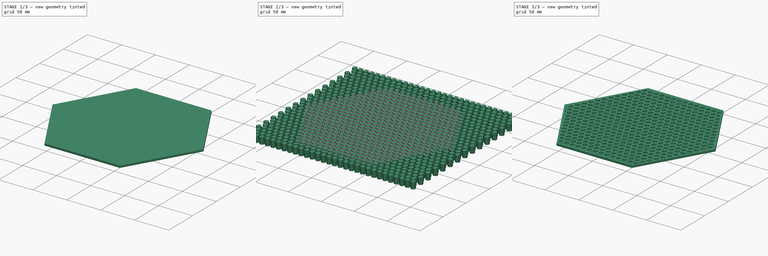
[diagram: build sequence overview — one tinted view per stage of 3, left to right]
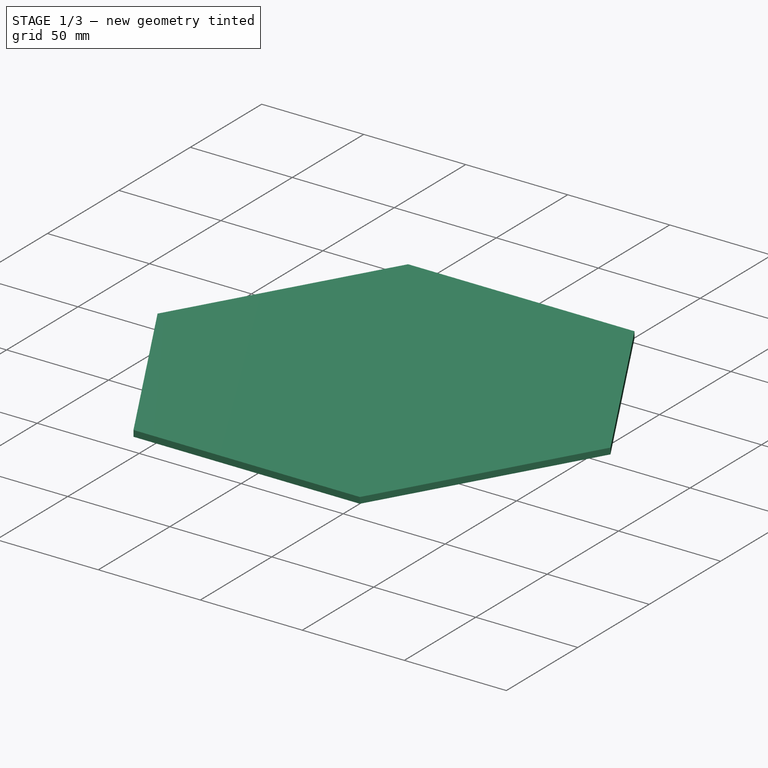
[diagram: stage 1 of 3 — iso view after this stage's code; geometry added in this stage tinted green]
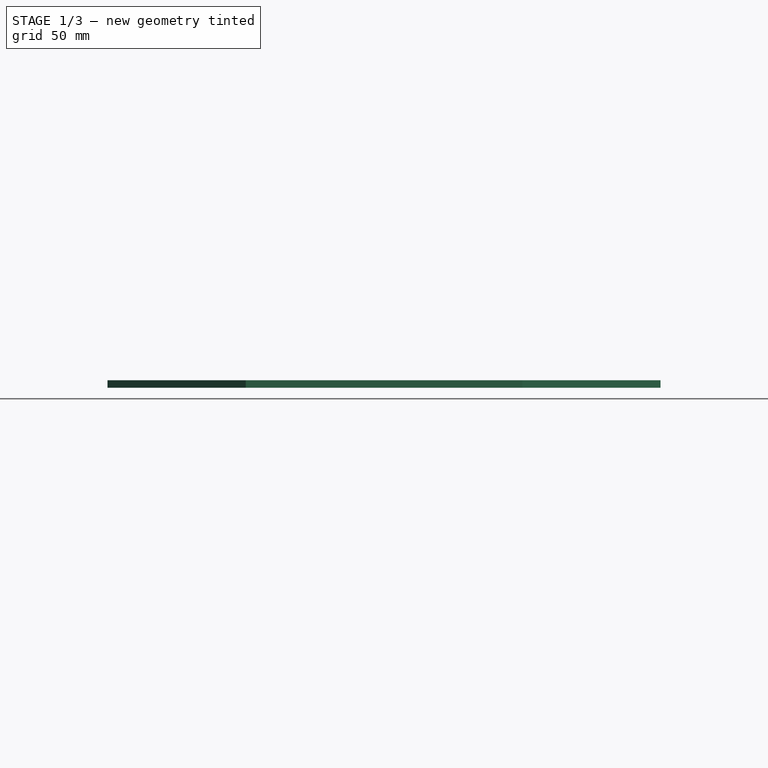
[diagram: stage 1 of 3 — front view after this stage's code; geometry added in this stage tinted green]
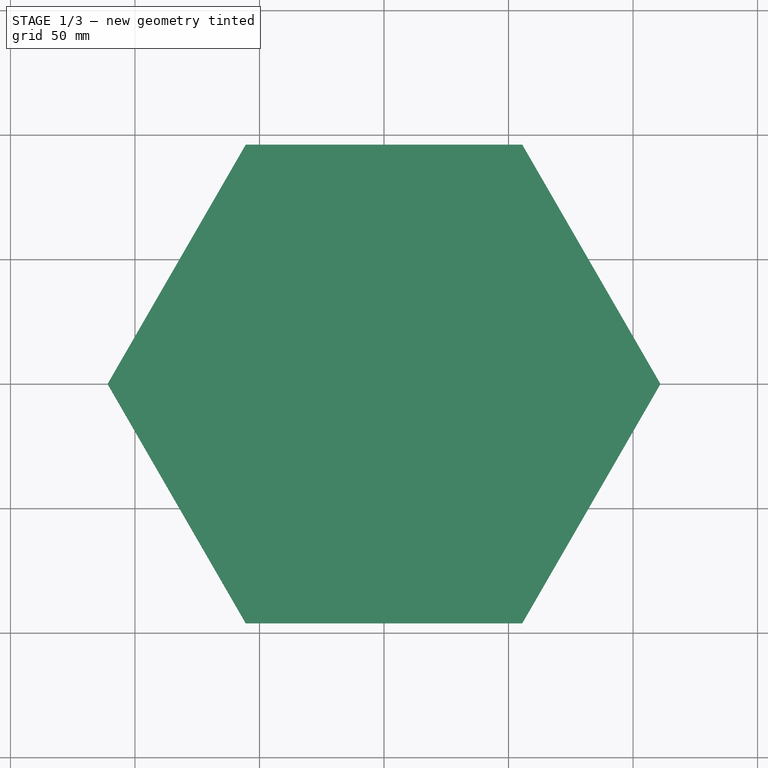
[diagram: stage 1 of 3 — top view after this stage's code; geometry added in this stage tinted green]
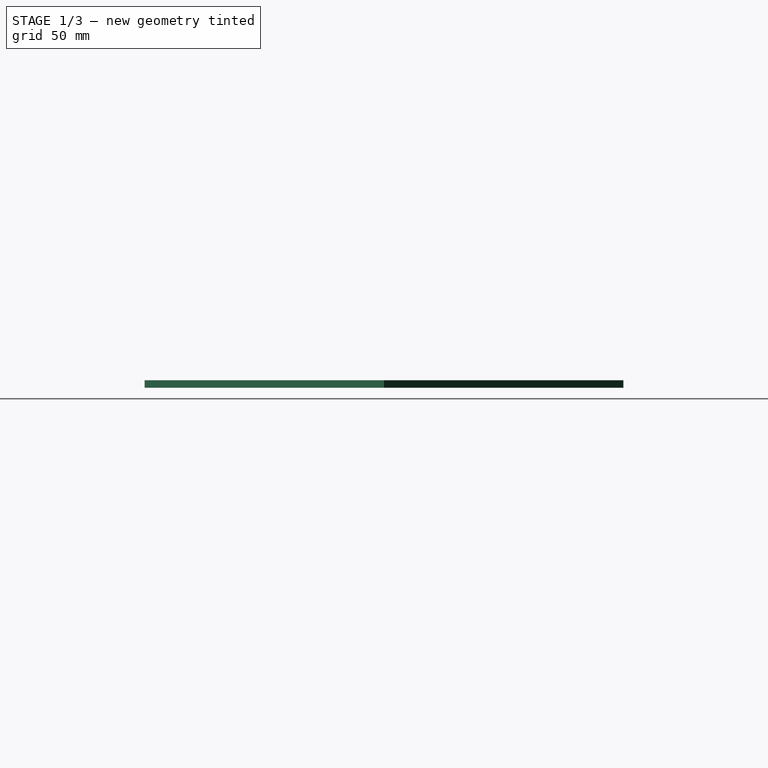
[diagram: stage 1 of 3 — right view after this stage's code; geometry added in this stage tinted green]
FCSTD DOCUMENT  (FreeCAD 1.0R39285 (Git))
Label: grid
License: All rights reserved
LicenseURL: https://en.wikipedia.org/wiki/All_rights_reserved
objects: Sketcher::SketchObject×3, Part::Extrusion×3, Part::FeaturePython×1, Part::Cut×1, Part::MultiFuse×1
note: 11 computed .brp shape members not serialized (recipe doc carries the construction recipe); baked Part::Feature solids carry a one-line shape summary decoded from their .brp
EXTERNAL_REF file=dims.FCStd obj=Spreadsheet

FEATURE [Part::Extrusion] Extrude001
  Base = -> Sketch
  Dir = (0,0,1)
  DirMode = 2
  FaceMakerClass = Part::FaceMakerBullseye
  FaceMakerMode = 3
  LengthFwd = 3
  LengthRev = 0
  Solid = true
  Symmetric = true
  expr: LengthFwd = dims#Spreadsheet.grid_height
FEATURE [Sketcher::SketchObject] Sketch002
  ArcFitTolerance = 1e-06
  AttachmentSupport = -> [Cut]
  FullyConstrained = true
  MakeInternals = false
  MapMode = 2
  expr: .Constraints.size1 = dims#Spreadsheet.width - dims#Spreadsheet.thickness - dims#Spreadsheet.grid_width
  expr: Constraints[39] = dims#Spreadsheet.width - dims#Spreadsheet.thickness - dims#Spreadsheet.grid_width * 3
  sketch-geometry (14):
    g0: LineSegment StartX=111 StartY=0 StartZ=0 EndX=55.5 EndY=96.1288 EndZ=0
    g1: LineSegment StartX=55.5 StartY=96.1288 StartZ=0 EndX=-55.5 EndY=96.1288 EndZ=0
    g2: LineSegment StartX=-55.5 StartY=96.1288 StartZ=0 EndX=-111 EndY=-1.42e-14 EndZ=0
    g3: LineSegment StartX=-111 StartY=-1.42e-14 StartZ=0 EndX=-55.5 EndY=-96.1288 EndZ=0
    g4: LineSegment StartX=-55.5 StartY=-96.1288 StartZ=0 EndX=55.5 EndY=-96.1288 EndZ=0
    g5: LineSegment StartX=55.5 StartY=-96.1288 StartZ=0 EndX=111 EndY=0 EndZ=0
    g6: Circle [constr] CenterX=0 CenterY=0 CenterZ=0 NormalX=0 NormalY=0 NormalZ=1 AngleXU=0 Radius=111
    g7: LineSegment StartX=108 StartY=0 StartZ=0 EndX=54 EndY=93.5307 EndZ=0
    g8: LineSegment StartX=54 StartY=93.5307 StartZ=0 EndX=-54 EndY=93.5307 EndZ=0
    g9: LineSegment StartX=-54 StartY=93.5307 StartZ=0 EndX=-108 EndY=1.99e-13 EndZ=0
    g10: LineSegment StartX=-108 StartY=2.047e-13 StartZ=0 EndX=-54 EndY=-93.5307 EndZ=0
    g11: LineSegment StartX=-54 StartY=-93.5307 StartZ=0 EndX=54 EndY=-93.5307 EndZ=0
    g12: LineSegment StartX=54 StartY=-93.5307 StartZ=0 EndX=108 EndY=0 EndZ=0
    g13: Circle [constr] CenterX=0 CenterY=0 CenterZ=0 NormalX=0 NormalY=0 NormalZ=1 AngleXU=0 Radius=108
  constraints (32):
    c: Coincident(g0,g1)
    c: Coincident(g1,g2)
    c: Coincident(g2,g3)
    c: Coincident(g3,g4)
    c: Coincident(g4,g5)
    c: Coincident(g5,g0)
    c: Equal(g0, g1-g5) x5
    c: PointOnObject(g0,g6)
    c: PointOnObject(g1,g6)
    c: PointOnObject(g2,g6)
    c: PointOnObject(g3,g6)
    c: PointOnObject(g4,g6)
    c: PointOnObject(g5,g6)
    c: Coincident(g6,g-1)
    c: PointOnObject(g5,g-1)
    c: Diameter(g6) = 222  'size1'
    c: Coincident(g7,g8)
    c: Coincident(g8,g9)
    c: Coincident(g9,g10)
    c: Coincident(g10,g11)
    c: Coincident(g11,g12)
    c: Coincident(g12,g7)
    c: Equal(g7, g8-g12) x5
    c: PointOnObject(g7,g13)
    c: PointOnObject(g8,g13)
    c: PointOnObject(g9,g13)
    c: PointOnObject(g10,g13)
    c: PointOnObject(g11,g13)
    c: PointOnObject(g12,g13)
    c: Coincident(g13,g6)
    c: PointOnObject(g12,g-1)
    c: Diameter(g13) = 216
FEATURE [Part::Extrusion] Extrude002
  Base = -> Sketch002
  Dir = (0,0,1)
  DirMode = 2
  FaceMakerClass = Part::FaceMakerBullseye
  FaceMakerMode = 3
  LengthFwd = 3
  LengthRev = 0
  Solid = true
  Symmetric = true
  expr: LengthFwd = dims#Spreadsheet.grid_height
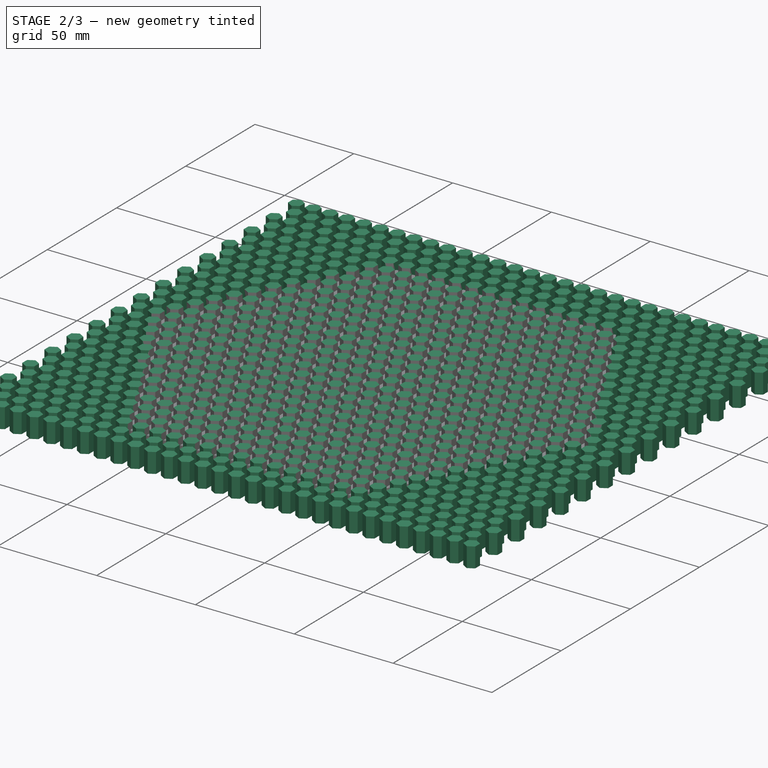
[diagram: stage 2 of 3 — iso view after this stage's code; geometry added in this stage tinted green]
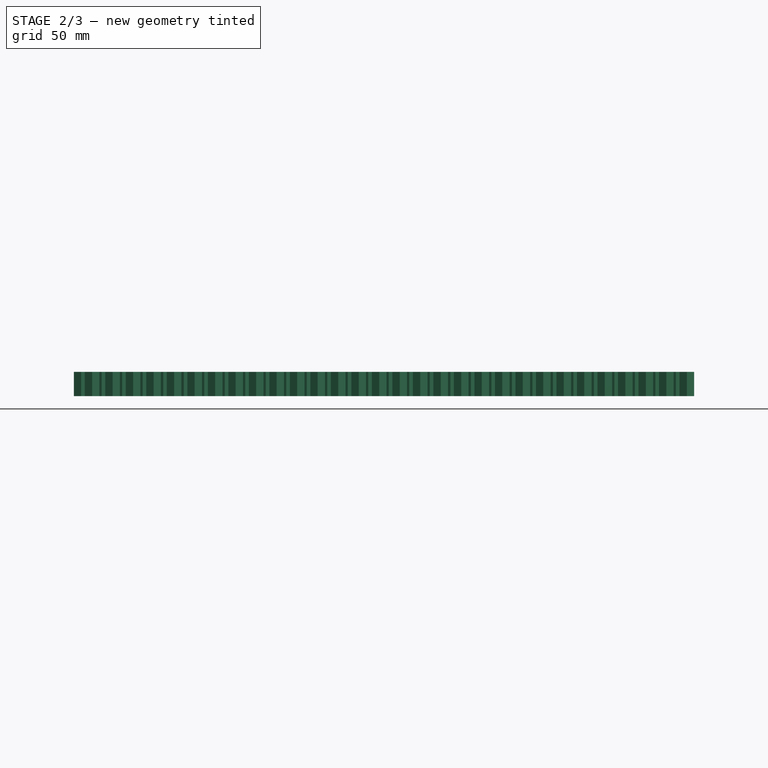
[diagram: stage 2 of 3 — front view after this stage's code; geometry added in this stage tinted green]
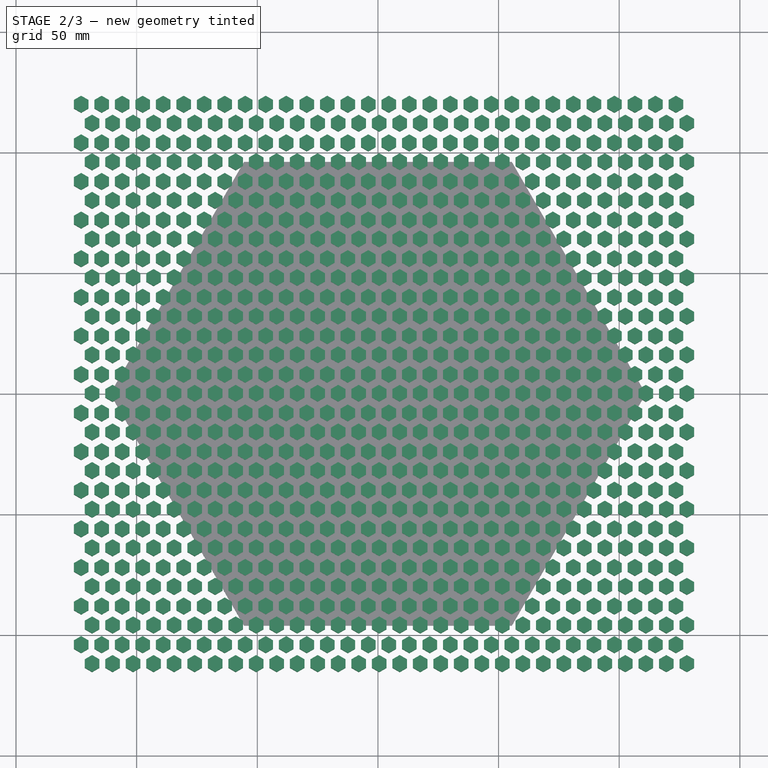
[diagram: stage 2 of 3 — top view after this stage's code; geometry added in this stage tinted green]
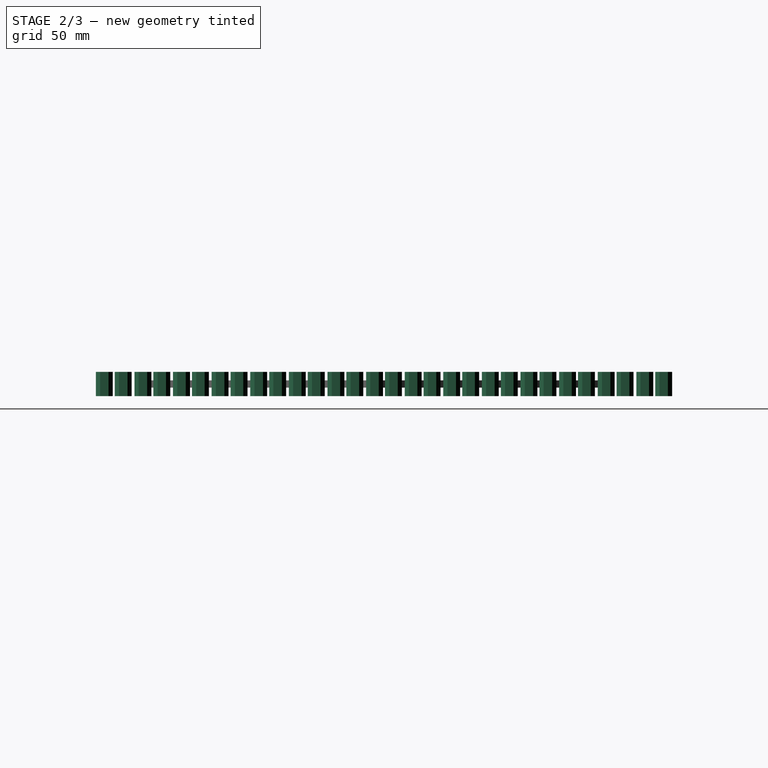
[diagram: stage 2 of 3 — right view after this stage's code; geometry added in this stage tinted green]
FEATURE [Sketcher::SketchObject] Sketch
  ArcFitTolerance = 1e-06
  FullyConstrained = true
  MakeInternals = false
  expr: Constraints[19] = dims#Spreadsheet.width - (dims#Spreadsheet.thickness + dims#Spreadsheet.grid_width)
  sketch-geometry (7):
    g0: LineSegment StartX=111 StartY=0 StartZ=0 EndX=55.5 EndY=96.1288 EndZ=0
    g1: LineSegment StartX=55.5 StartY=96.1288 StartZ=0 EndX=-55.5 EndY=96.1288 EndZ=0
    g2: LineSegment StartX=-55.5 StartY=96.1288 StartZ=0 EndX=-111 EndY=-1.42e-14 EndZ=0
    g3: LineSegment StartX=-111 StartY=-1.42e-14 StartZ=0 EndX=-55.5 EndY=-96.1288 EndZ=0
    g4: LineSegment StartX=-55.5 StartY=-96.1288 StartZ=0 EndX=55.5 EndY=-96.1288 EndZ=0
    g5: LineSegment StartX=55.5 StartY=-96.1288 StartZ=0 EndX=111 EndY=0 EndZ=0
    g6: Circle [constr] CenterX=0 CenterY=0 CenterZ=0 NormalX=0 NormalY=0 NormalZ=1 AngleXU=0 Radius=111
  constraints (16):
    c: Coincident(g0,g1)
    c: Coincident(g1,g2)
    c: Coincident(g2,g3)
    c: Coincident(g3,g4)
    c: Coincident(g4,g5)
    c: Coincident(g5,g0)
    c: Equal(g0, g1-g5) x5
    c: PointOnObject(g0,g6)
    c: PointOnObject(g1,g6)
    c: PointOnObject(g2,g6)
    c: PointOnObject(g3,g6)
    c: PointOnObject(g4,g6)
    c: PointOnObject(g5,g6)
    c: Coincident(g6,g-1)
    c: PointOnObject(g5,g-1)
    c: Diameter(g6) = 222
FEATURE [Sketcher::SketchObject] Sketch001
  ArcFitTolerance = 1e-06
  AttachmentSupport = -> [Sketch]
  FullyConstrained = true
  MakeInternals = false
  MapMode = 2
  expr: Constraints[38] = dims#Spreadsheet.grid_id
  expr: Constraints[47] = dims#Spreadsheet.grid_width
  sketch-geometry (17):
    g0: LineSegment StartX=3.03109 StartY=-1.75 StartZ=0 EndX=3.03109 EndY=1.75 EndZ=0
    g1: LineSegment StartX=3.03109 StartY=1.75 StartZ=0 EndX=4e-16 EndY=3.5 EndZ=0
    g2: LineSegment StartX=4e-16 StartY=3.5 StartZ=0 EndX=-3.03109 EndY=1.75 EndZ=0
    g3: LineSegment StartX=-3.03109 StartY=1.75 StartZ=0 EndX=-3.03109 EndY=-1.75 EndZ=0
    g4: LineSegment StartX=-3.03109 StartY=-1.75 StartZ=0 EndX=-4e-16 EndY=-3.5 EndZ=0
    g5: LineSegment StartX=-6e-16 StartY=-3.5 StartZ=0 EndX=3.03109 EndY=-1.75 EndZ=0
    g6: Circle [constr] CenterX=0 CenterY=0 CenterZ=0 NormalX=0 NormalY=0 NormalZ=1 AngleXU=0 Radius=3.5
    g7: LineSegment StartX=7.56218 StartY=-9.59808 StartZ=0 EndX=7.56218 EndY=-6.09808 EndZ=0
    g8: LineSegment StartX=7.56218 StartY=-6.09808 StartZ=0 EndX=4.53109 EndY=-4.34808 EndZ=0
    g9: LineSegment StartX=4.53109 StartY=-4.34808 StartZ=0 EndX=1.5 EndY=-6.09808 EndZ=0
    g10: LineSegment StartX=1.5 StartY=-6.09808 StartZ=0 EndX=1.5 EndY=-9.59808 EndZ=0
    g11: LineSegment StartX=1.5 StartY=-9.59808 StartZ=0 EndX=4.53109 EndY=-11.3481 EndZ=0
    g12: LineSegment StartX=4.53109 StartY=-11.3481 StartZ=0 EndX=7.56218 EndY=-9.59808 EndZ=0
    g13: Circle [constr] CenterX=4.53109 CenterY=-7.84808 CenterZ=0 NormalX=0 NormalY=0 NormalZ=1 AngleXU=0 Radius=3.5
    g14: LineSegment [constr] StartX=3.03109 StartY=-1.75 StartZ=0 EndX=6.03109 EndY=-1.75 EndZ=0
    g15: LineSegment [constr] StartX=6.03109 StartY=-1.75 StartZ=0 EndX=4.53109 EndY=-4.34808 EndZ=0
    g16: LineSegment [constr] StartX=3.03109 StartY=-1.75 StartZ=0 EndX=4.53109 EndY=-4.34808 EndZ=0
  constraints (40):
    c: Coincident(g0,g1)
    c: Coincident(g1,g2)
    c: Coincident(g2,g3)
    c: Coincident(g3,g4)
    c: Coincident(g4,g5)
    c: Coincident(g5,g0)
    c: Equal(g0, g1-g5) x5
    c: PointOnObject(g0,g6)
    c: PointOnObject(g1,g6)
    c: PointOnObject(g2,g6)
    c: PointOnObject(g3,g6)
    c: PointOnObject(g4,g6)
    c: PointOnObject(g5,g6)
    c: Coincident(g6,g-1)
    c: Coincident(g7,g8)
    c: Coincident(g8,g9)
    c: Coincident(g9,g10)
    c: Coincident(g10,g11)
    c: Coincident(g11,g12)
    c: Coincident(g12,g7)
    c: Equal(g7, g8-g12) x5
    c: PointOnObject(g7,g13)
    c: PointOnObject(g8,g13)
    c: PointOnObject(g9,g13)
    c: PointOnObject(g10,g13)
    c: PointOnObject(g11,g13)
    c: PointOnObject(g12,g13)
    c: Vertical(g0)
    c: Vertical(g7)
    c: Equal(g6,g13)
    c: Diameter(g13) = 7
    c: Horizontal(g14)
    c: Coincident(g15,g14)
    c: Coincident(g16,g14)
    c: Coincident(g16,g15)
    c: Equal(g14,g16)
    c: Equal(g16,g15)
    c: Coincident(g14,g0)
    c: Coincident(g8,g15)
    c: Distance(g16,g16) = 3
FEATURE [Part::FeaturePython] Array  # Draft array (typed FeaturePython)
  AlwaysSyncPlacement = false
  Angle = 360
  ArrayType = 0
  Axis = (0,0,1)
  Base = -> Sketch001
  Center = (0,0,0)
  Count = 450
  ExpandArray = false
  Fuse = false
  IntervalAxis = (0,0,0)
  IntervalX = (8.5,0,0)
  IntervalY = (0,16,0)
  IntervalZ = (0,0,100)
  NumberCircles = 3
  NumberPolar = 5
  NumberX = 30
  NumberY = 15
  NumberZ = 1
  Placement = pos=(-123,-104,0) rot=(0,0,1;0rad)
  PlacementList = 450 placements: [(0,0,0),(0,16,0),(0,32,0),(0,48,0),(0,64,0),(0,80,0),(0,96,0),(0,112,0),(0,128,0),(0,144,0),(0,160,0),(0,176,0),(0,192,0),(0,208,0),(0,224,0),(8.5,0,0),(8.5,16,0),(8.5,32,0),(8.5,48,0),(8.5,64,0),(8.5,80,0),(8.5,96,0),(8.5,112,0),(8.5,128,0),(8.5,144,0),(8.5,160,0),(8.5,176,0),(8.5,192,0),(8.5,208,0),(8.5,224,0),(17,0,0),(17,16,0),(17,32,0),(17,48,0),(17,64,0),(17,80,0),(17,96,0),(17,112,0),+412 more]
  RadialDistance = 50
  Symmetry = 1
  TangentialDistance = 25
  expr: .IntervalX.x = dims#Spreadsheet.grid_id + dims#Spreadsheet.grid_width / 2
  expr: .IntervalY.y = (dims#Spreadsheet.grid_id - dims#Spreadsheet.grid_width) * 4
FEATURE [Part::Extrusion] Extrude
  Base = -> Array
  Dir = (0,0,1)
  DirMode = 2
  FaceMakerClass = Part::FaceMakerBullseye
  FaceMakerMode = 3
  LengthFwd = 10
  LengthRev = 0
  Solid = true
  Symmetric = true
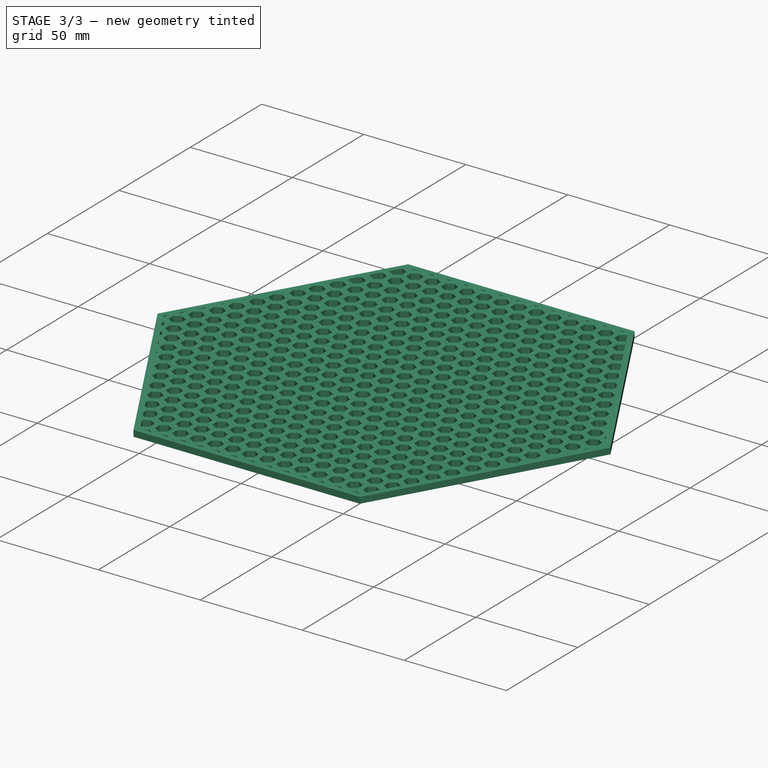
[diagram: stage 3 of 3 — iso view after this stage's code; geometry added in this stage tinted green]
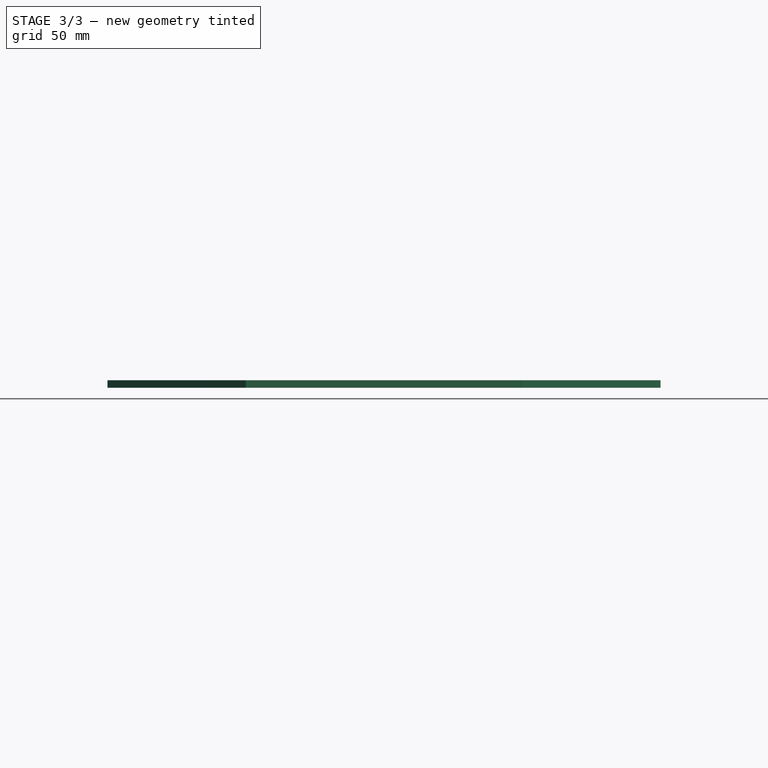
[diagram: stage 3 of 3 — front view after this stage's code; geometry added in this stage tinted green]
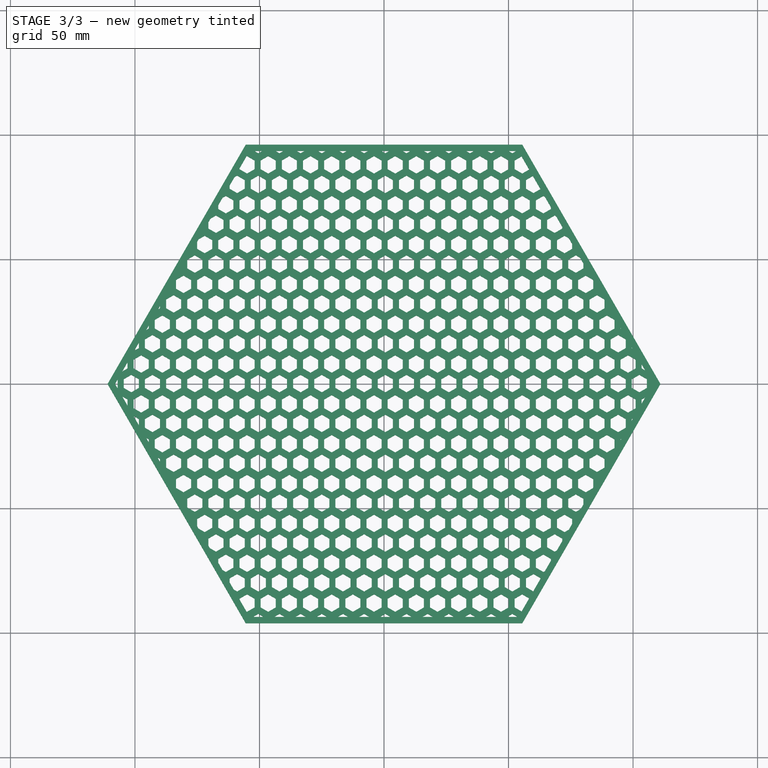
[diagram: stage 3 of 3 — top view after this stage's code; geometry added in this stage tinted green]
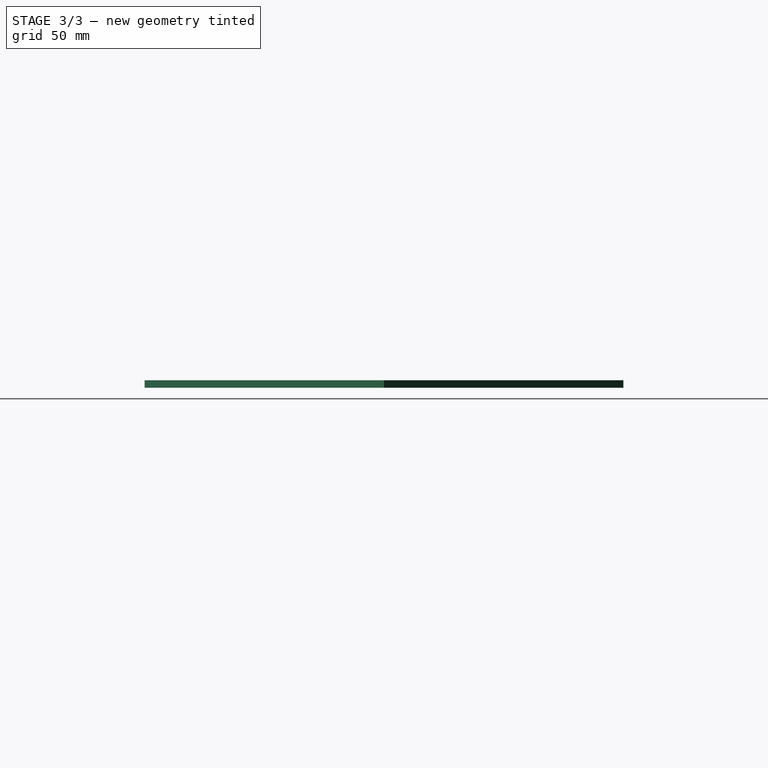
[diagram: stage 3 of 3 — right view after this stage's code; geometry added in this stage tinted green]
FEATURE [Part::Cut] Cut
  Base = -> Extrude001
  Refine = true
  Tool = -> Extrude
FEATURE [Part::MultiFuse] Fusion
  Refine = true
  Shapes = -> [Cut,Extrude002]
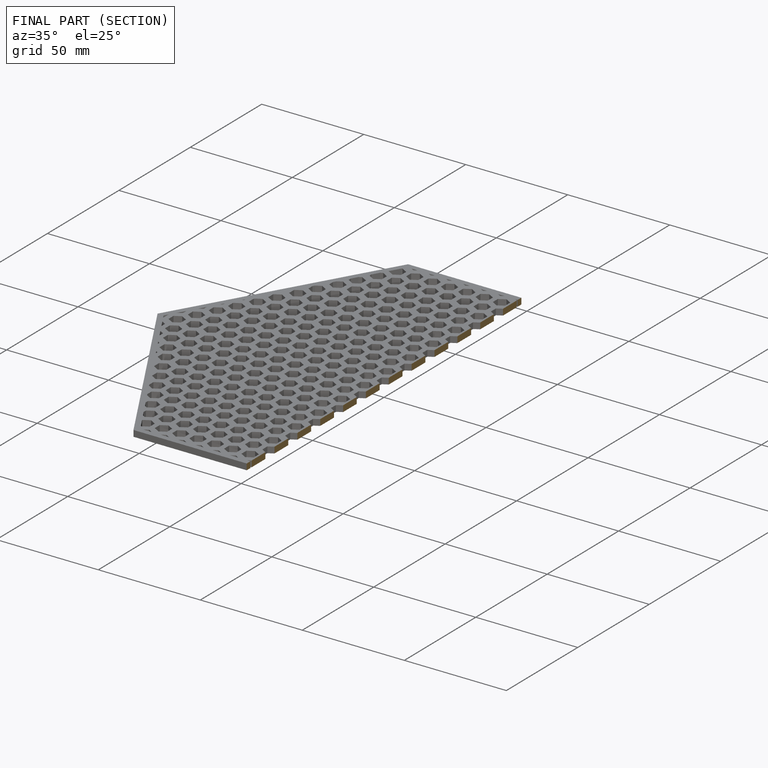
[diagram: finished part — half-section view (interior)]
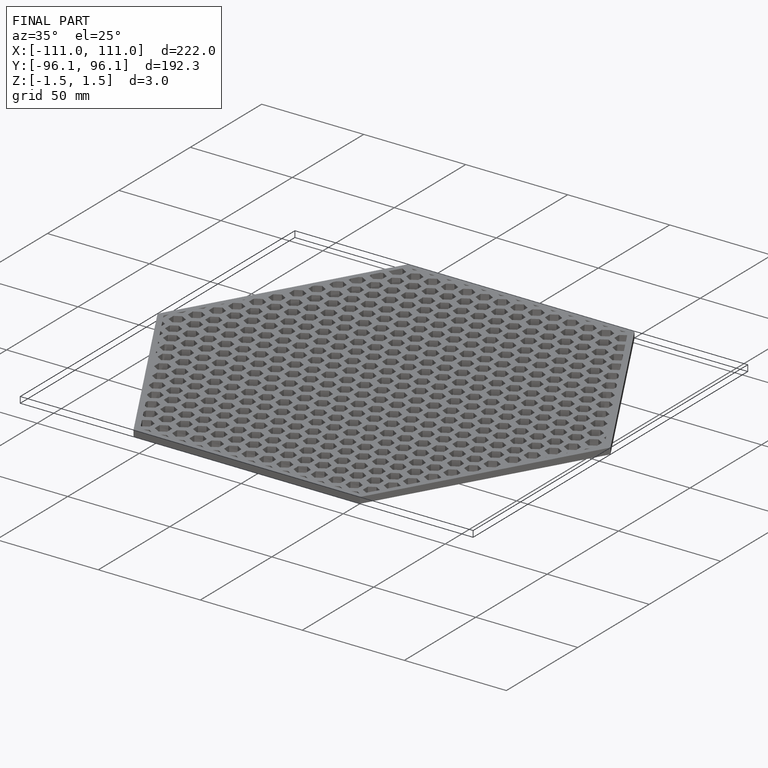
[diagram: finished part — iso view with bounding-box wireframe]
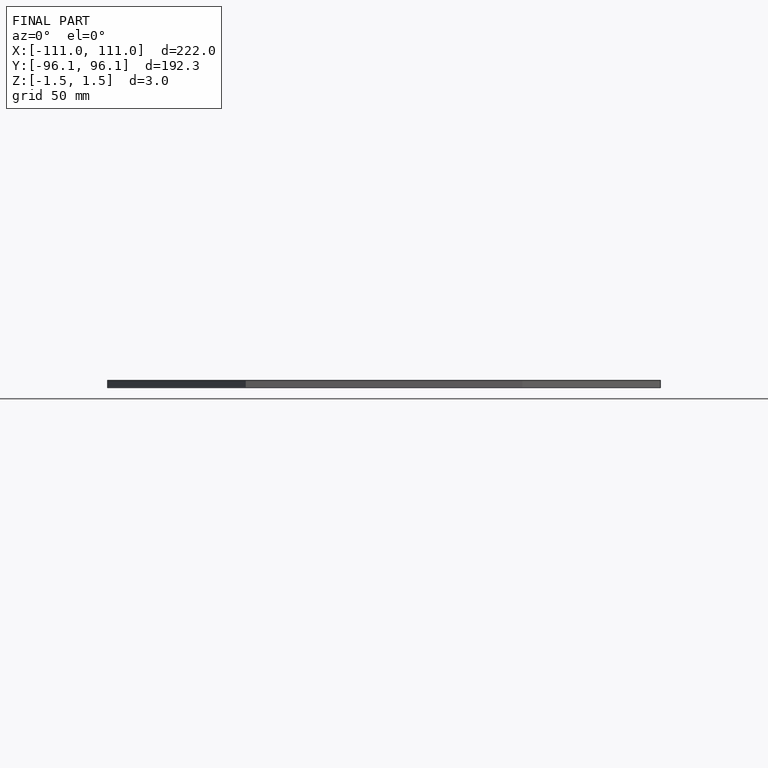
[diagram: finished part — front view with bounding-box wireframe]
